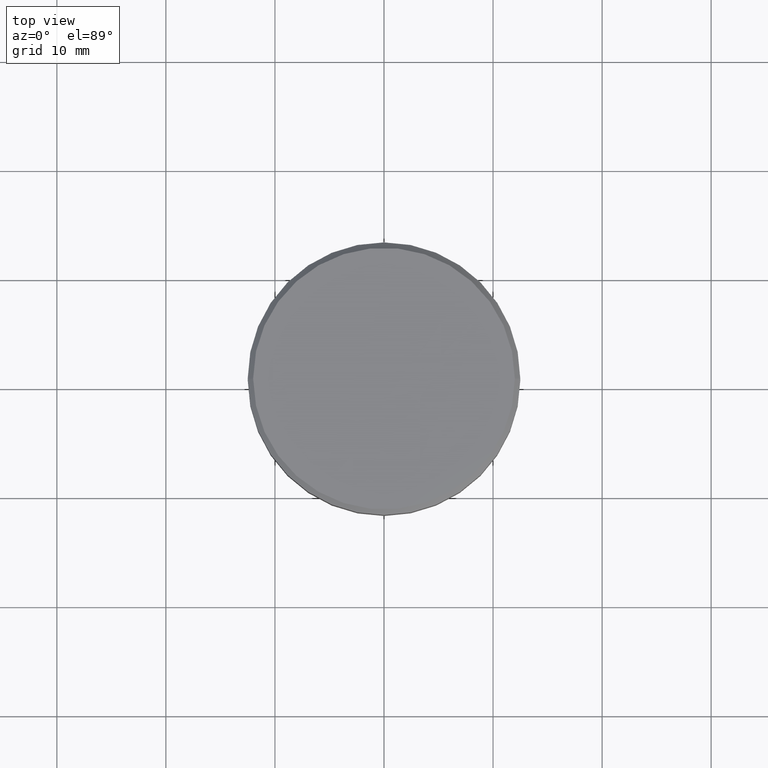
[diagram: clean part render]
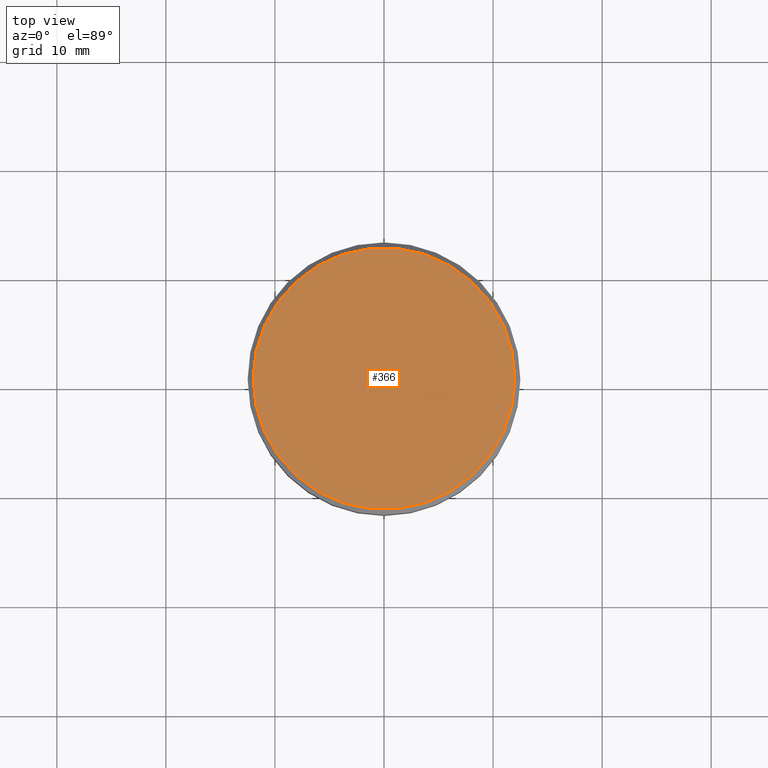
[diagram: same view with one face highlighted and labeled with its STEP entity id]
A machine part, top view. The second image highlights one B-rep face of the part: STEP entity #366.
In plain terms, the highlighted planar face has unit normal (0, -0, 1).
Its self-contained STEP definition (entity closure, byte-faithful):
#18 = EDGE_CURVE ( 'NONE', #616, #875, #297, .T. ) ;
#32 = ORIENTED_EDGE ( 'NONE', *, *, #18, .T. ) ;
#95 = CARTESIAN_POINT ( 'NONE',  ( 0.000000000000000000, 0.000000000000000000, 0.000000000000000000 ) ) ;
#160 = CIRCLE ( 'NONE', #648, 12.00000000000001066 ) ;
#170 = DIRECTION ( 'NONE',  ( 1.000000000000000000, 0.000000000000000000, 0.000000000000000000 ) ) ;
#262 = DIRECTION ( 'NONE',  ( 0.000000000000000000, -0.000000000000000000, 1.000000000000000000 ) ) ;
#265 = EDGE_CURVE ( 'NONE', #875, #616, #160, .T. ) ;
#297 = CIRCLE ( 'NONE', #646, 12.00000000000001066 ) ;
#366 = ADVANCED_FACE ( 'NONE', ( #1096 ), #637, .T. ) ;
#403 = CARTESIAN_POINT ( 'NONE',  ( 12.00000000000001066, 1.500192328955508326E-15, 0.000000000000000000 ) ) ;
#404 = AXIS2_PLACEMENT_3D ( 'NONE', #95, #262, #811 ) ;
#460 = DIRECTION ( 'NONE',  ( -0.000000000000000000, -0.000000000000000000, 1.000000000000000000 ) ) ;
#545 = DIRECTION ( 'NONE',  ( -0.000000000000000000, -0.000000000000000000, 1.000000000000000000 ) ) ;
#616 = VERTEX_POINT ( 'NONE', #639 ) ;
#637 = PLANE ( 'NONE',  #404 ) ;
#639 = CARTESIAN_POINT ( 'NONE',  ( -12.00000000000001066, 0.000000000000000000, 0.000000000000000000 ) ) ;
#646 = AXIS2_PLACEMENT_3D ( 'NONE', #815, #545, #170 ) ;
#648 = AXIS2_PLACEMENT_3D ( 'NONE', #930, #460, #837 ) ;
#783 = EDGE_LOOP ( 'NONE', ( #32, #828 ) ) ;
#811 = DIRECTION ( 'NONE',  ( 1.000000000000000000, 0.000000000000000000, 0.000000000000000000 ) ) ;
#815 = CARTESIAN_POINT ( 'NONE',  ( 0.000000000000000000, 0.000000000000000000, 0.000000000000000000 ) ) ;
#828 = ORIENTED_EDGE ( 'NONE', *, *, #265, .T. ) ;
#837 = DIRECTION ( 'NONE',  ( 1.000000000000000000, 0.000000000000000000, 0.000000000000000000 ) ) ;
#875 = VERTEX_POINT ( 'NONE', #403 ) ;
#930 = CARTESIAN_POINT ( 'NONE',  ( 0.000000000000000000, 0.000000000000000000, 0.000000000000000000 ) ) ;
#1096 = FACE_OUTER_BOUND ( 'NONE', #783, .T. ) ;